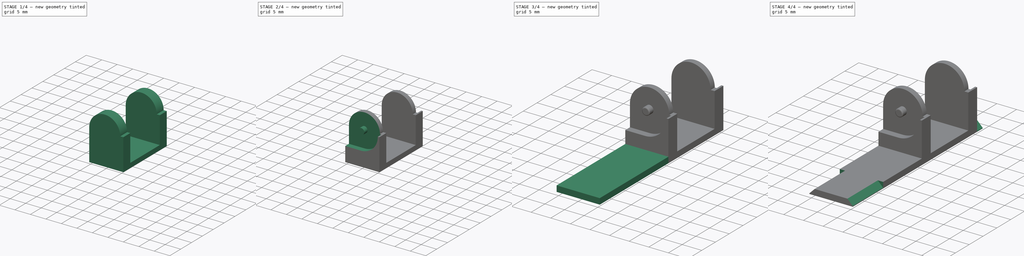
[diagram: build sequence overview — one tinted view per stage of 4, left to right]
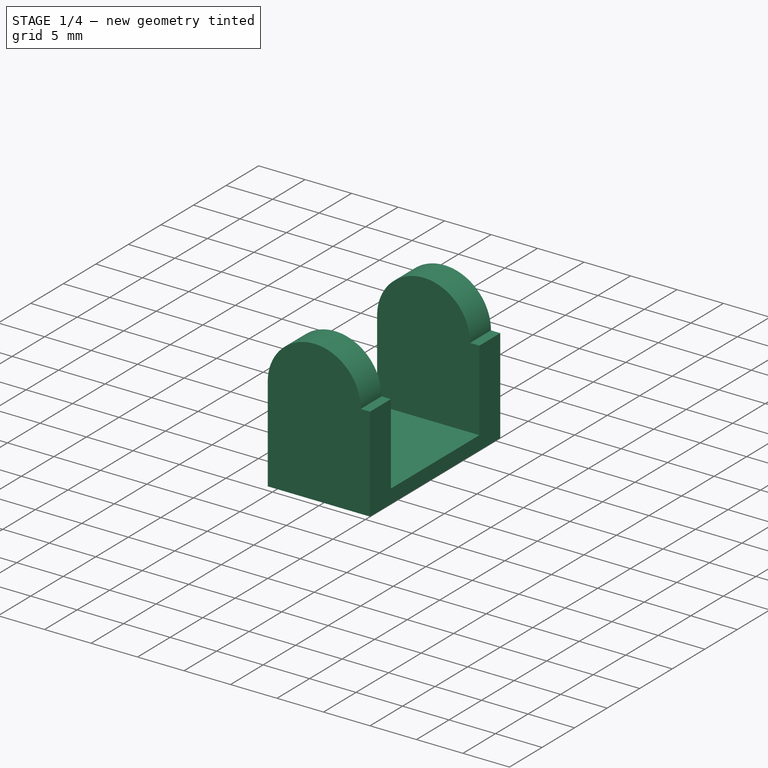
[diagram: stage 1 of 4 — iso view after this stage's code; geometry added in this stage tinted green]
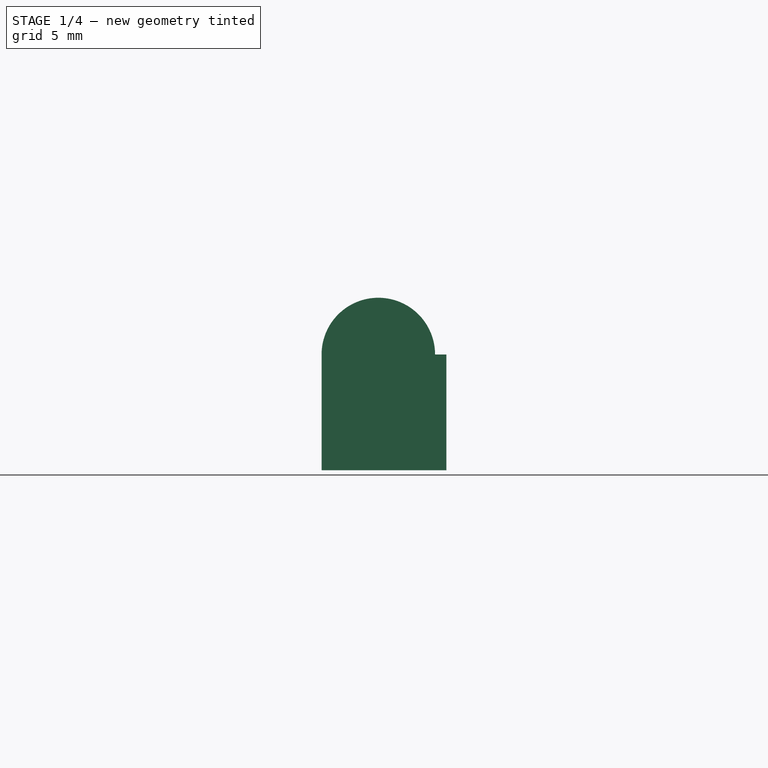
[diagram: stage 1 of 4 — front view after this stage's code; geometry added in this stage tinted green]
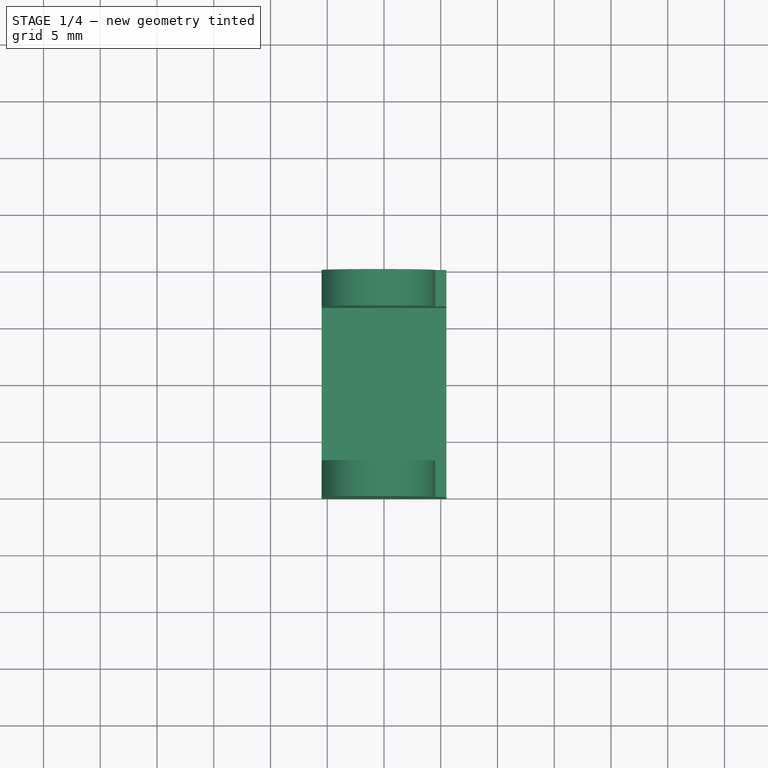
[diagram: stage 1 of 4 — top view after this stage's code; geometry added in this stage tinted green]
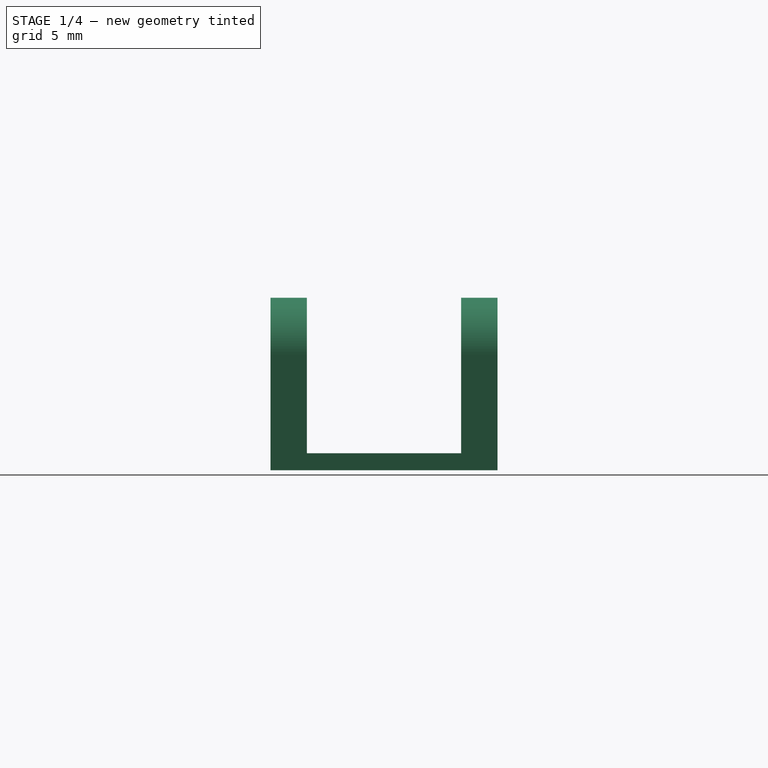
[diagram: stage 1 of 4 — right view after this stage's code; geometry added in this stage tinted green]
FCSTD DOCUMENT  (FreeCAD 0.17R13541 (Git))
Label: CableCareerExtruder2
License: All rights reserved
LicenseURL: http://en.wikipedia.org/wiki/All_rights_reserved
objects: Sketcher::SketchObject×11, PartDesign::Pocket×6, PartDesign::Pad×5, PartDesign::Fillet×2, PartDesign::Body×1
note: 36 computed .brp shape members not serialized (recipe doc carries the construction recipe); baked Part::Feature solids carry a one-line shape summary decoded from their .brp

FEATURE [Sketcher::SketchObject] Sketch
  MapMode = 5
  Support = -> [XY_Plane]
  sketch-geometry (4):
    g0: LineSegment StartX=-5.5 StartY=10 StartZ=0 EndX=5.5 EndY=10 EndZ=0
    g1: LineSegment StartX=5.5 StartY=10 StartZ=0 EndX=5.5 EndY=-10 EndZ=0
    g2: LineSegment StartX=5.5 StartY=-10 StartZ=0 EndX=-5.5 EndY=-10 EndZ=0
    g3: LineSegment StartX=-5.5 StartY=-10 StartZ=0 EndX=-5.5 EndY=10 EndZ=0
  constraints (12):
    c: Coincident(g0,g1)
    c: Coincident(g1,g2)
    c: Coincident(g2,g3)
    c: Coincident(g3,g0)
    c: Horizontal(g0)
    c: Horizontal(g2)
    c: Vertical(g1)
    c: Vertical(g3)
    c: DistanceX(g0,g0) = 11
    c: DistanceY(g3,g3) = 20
    c: DistanceX(g0,g-1) = 5.5
    c: DistanceY(g-1,g0) = 10
FEATURE [PartDesign::Pad] Pad
  Length = 15.2
  Length2 = 100
  Profile = -> Sketch
  Type = 0
FEATURE [Sketcher::SketchObject] Sketch007
  MapMode = 5
  Placement = pos=(0,-10,0) rot=(1,0,0;1.5708rad)
  sketch-geometry (5):
    g0: ArcOfCircle CenterX=-0.5 CenterY=10.2 CenterZ=0 NormalX=0 NormalY=0 NormalZ=1 AngleXU=0 Radius=5 StartAngle=1.92183e-06 EndAngle=3.14159
    g1: LineSegment StartX=-5.5 StartY=10.2 StartZ=0 EndX=-5.5 EndY=16.2 EndZ=0
    g2: LineSegment StartX=-5.5 StartY=16.2 StartZ=0 EndX=5.5 EndY=16.2 EndZ=0
    g3: LineSegment StartX=5.5 StartY=16.2 StartZ=0 EndX=5.5 EndY=10.2 EndZ=0
    g4: LineSegment StartX=5.5 StartY=10.2 StartZ=0 EndX=4.5 EndY=10.2 EndZ=0
  constraints (11):
    c: Radius(g0) = 5
    c: Angle(g0) = 3.14159
    c: Coincident(g1,g2)
    c: Coincident(g2,g3)
    c: Coincident(g3,g4)
    c: Horizontal(g4)
    c: Horizontal(g2)
    c: Vertical(g3)
    c: Vertical(g1)
    c: Coincident(g0,g1)
    c: Coincident(g0,g4)
FEATURE [PartDesign::Pocket] Pocket001
  BaseFeature = -> Pad
  Length = 20
  Length2 = 100
  Profile = -> Sketch007
  Type = 0
FEATURE [Sketcher::SketchObject] Sketch008
  ExternalGeometry = -> [Pocket001]
  MapMode = 5
  Placement = pos=(-5.5,0,0) rot=(0.57735,-0.57735,-0.57735;2.0944rad)
  Support = -> [Pocket001]
  sketch-geometry (4):
    g0: LineSegment StartX=-6.8 StartY=15.2 StartZ=0 EndX=6.8 EndY=15.2 EndZ=0
    g1: LineSegment StartX=6.8 StartY=15.2 StartZ=0 EndX=6.8 EndY=1.5 EndZ=0
    g2: LineSegment StartX=6.8 StartY=1.5 StartZ=0 EndX=-6.8 EndY=1.5 EndZ=0
    g3: LineSegment StartX=-6.8 StartY=1.5 StartZ=0 EndX=-6.8 EndY=15.2 EndZ=0
FEATURE [PartDesign::Pocket] Pocket002
  BaseFeature = -> Pocket001
  Length = 11
  Length2 = 100
  Profile = -> Sketch008
  Type = 0
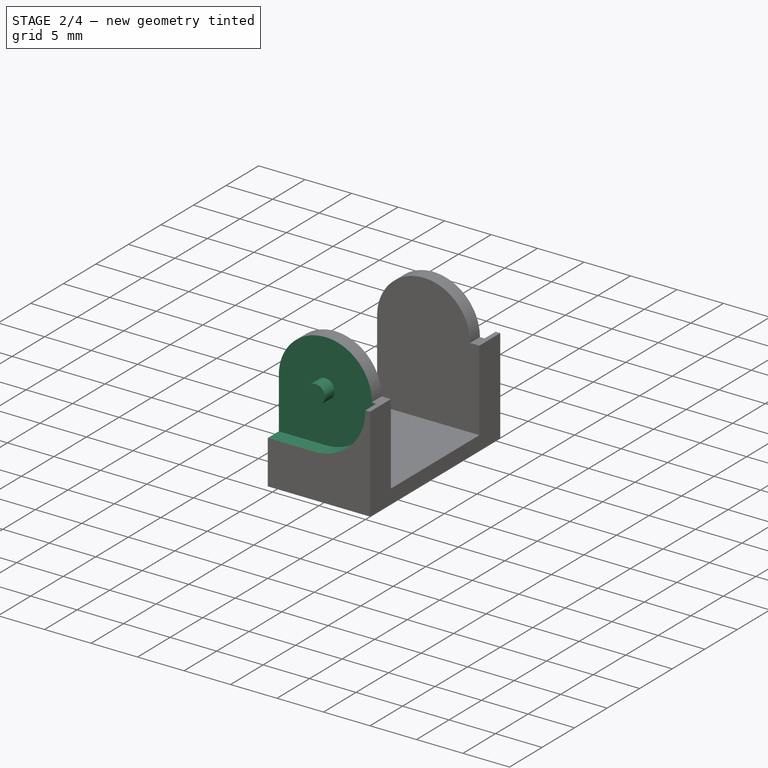
[diagram: stage 2 of 4 — iso view after this stage's code; geometry added in this stage tinted green]
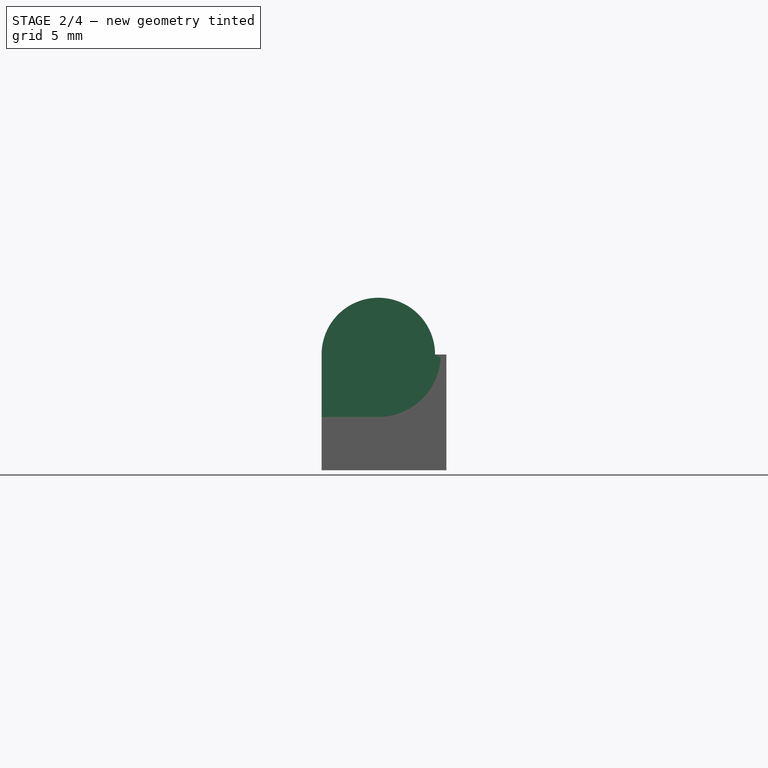
[diagram: stage 2 of 4 — front view after this stage's code; geometry added in this stage tinted green]
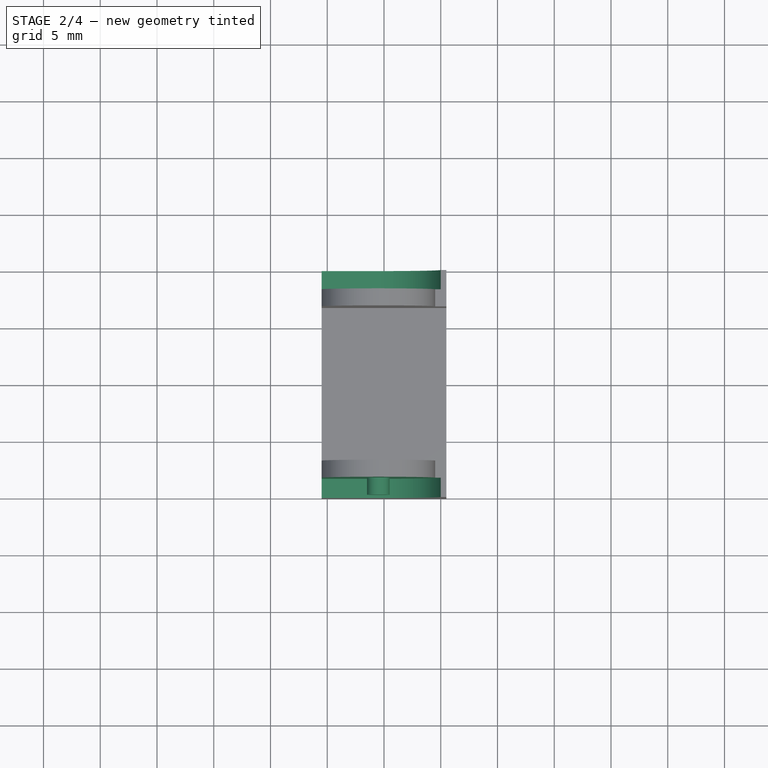
[diagram: stage 2 of 4 — top view after this stage's code; geometry added in this stage tinted green]
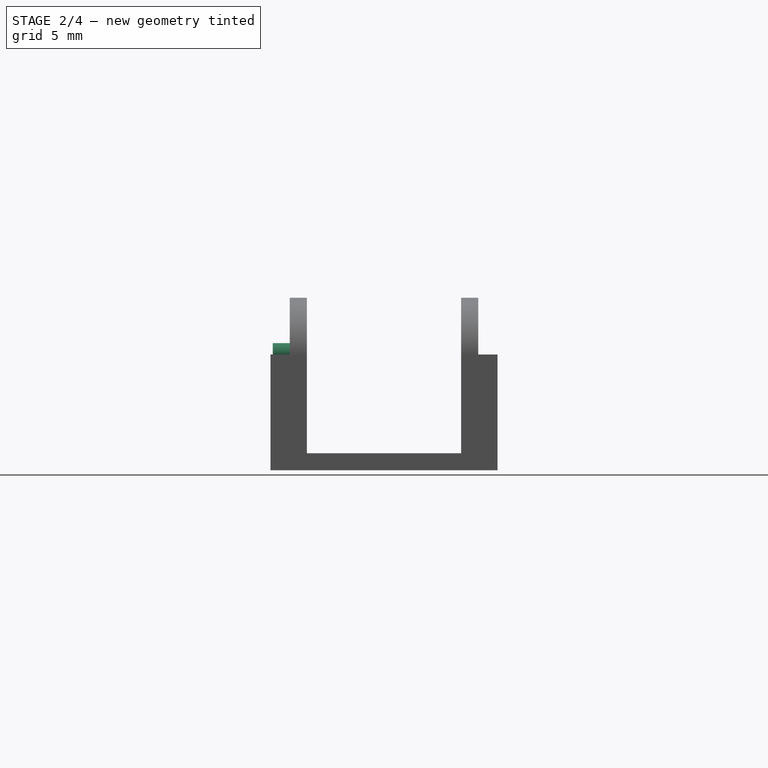
[diagram: stage 2 of 4 — right view after this stage's code; geometry added in this stage tinted green]
FEATURE [Sketcher::SketchObject] Sketch009
  MapMode = 5
  Placement = pos=(0,-10,0) rot=(1,0,0;1.5708rad)
  Support = -> [Pocket002]
  sketch-geometry (3):
    g0: ArcOfCircle CenterX=-0.5 CenterY=10.2 CenterZ=0 NormalX=0 NormalY=0 NormalZ=1 AngleXU=0 Radius=5.5 StartAngle=4.71239 EndAngle=9.42478
    g1: LineSegment StartX=-6 StartY=10.2 StartZ=0 EndX=-6 EndY=4.7 EndZ=0
    g2: LineSegment StartX=-6 StartY=4.7 StartZ=0 EndX=-0.49999 EndY=4.7 EndZ=0
FEATURE [PartDesign::Pocket] Pocket003
  BaseFeature = -> Pocket002
  Length = 1.7
  Length2 = 100
  Profile = -> Sketch009
  Type = 0
FEATURE [Sketcher::SketchObject] Sketch010
  ExternalGeometry = -> [Pocket003]
  MapMode = 5
  Placement = pos=(0,10,0) rot=(0,0.707107,0.707107;3.14159rad)
  Support = -> [Pocket003]
  sketch-geometry (3):
    g0: ArcOfCircle CenterX=0.5 CenterY=10.2 CenterZ=0 NormalX=0 NormalY=0 NormalZ=1 AngleXU=0 Radius=5.5 StartAngle=6.28318 EndAngle=10.9956
    g1: LineSegment StartX=0.49999 StartY=4.7 StartZ=0 EndX=6 EndY=4.7 EndZ=0
    g2: LineSegment StartX=6 StartY=4.7 StartZ=0 EndX=6 EndY=10.2 EndZ=0
  constraints (9):
    c: Coincident(g0,g-3)
    c: Radius(g0) = 5.5
    c: Angle(g0) = 4.71239
    c: DistanceY(g0,g-3) = 0
    c: Coincident(g1,g2)
    c: Vertical(g2)
    c: Horizontal(g1)
    c: Coincident(g1,g0)
    c: Coincident(g2,g0)
FEATURE [PartDesign::Pocket] Pocket004
  BaseFeature = -> Pocket003
  Length = 1.7
  Length2 = 100
  Profile = -> Sketch010
  Type = 0
FEATURE [Sketcher::SketchObject] Sketch011
  ExternalGeometry = -> [Pocket004]
  MapMode = 5
  Placement = pos=(0,-8.3,0) rot=(1,0,0;1.5708rad)
  Support = -> [Pocket004]
  sketch-geometry (1):
    g0: Circle CenterX=-0.5 CenterY=10.2 CenterZ=0 NormalX=0 NormalY=0 NormalZ=1 AngleXU=0 Radius=1
  constraints (2):
    c: Coincident(g-3,g0)
    c: Radius(g0) = 1
FEATURE [PartDesign::Pad] Pad001
  BaseFeature = -> Pocket004
  Length = 1.5
  Length2 = 100
  Profile = -> Sketch011
  Type = 0
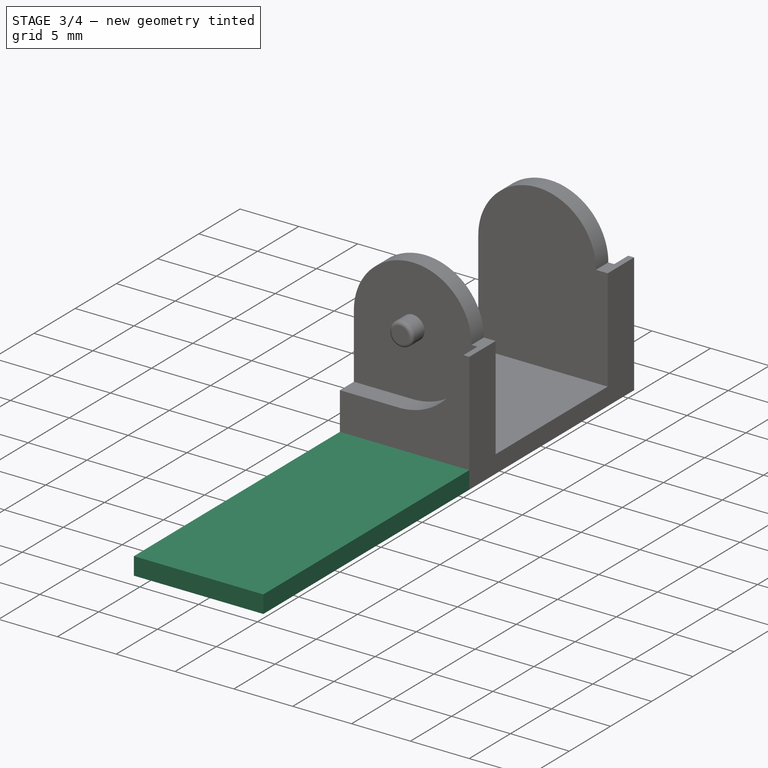
[diagram: stage 3 of 4 — iso view after this stage's code; geometry added in this stage tinted green]
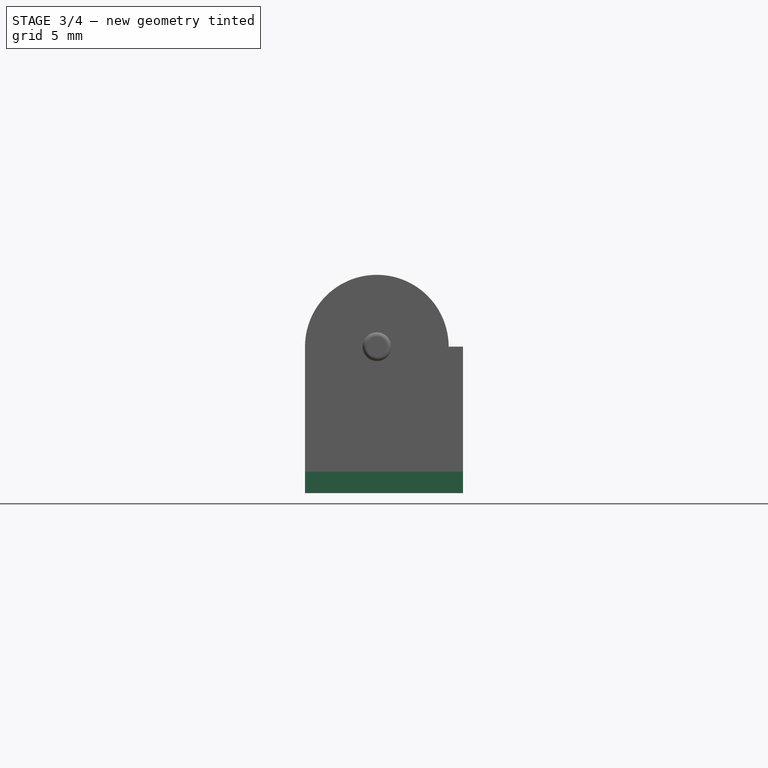
[diagram: stage 3 of 4 — front view after this stage's code; geometry added in this stage tinted green]
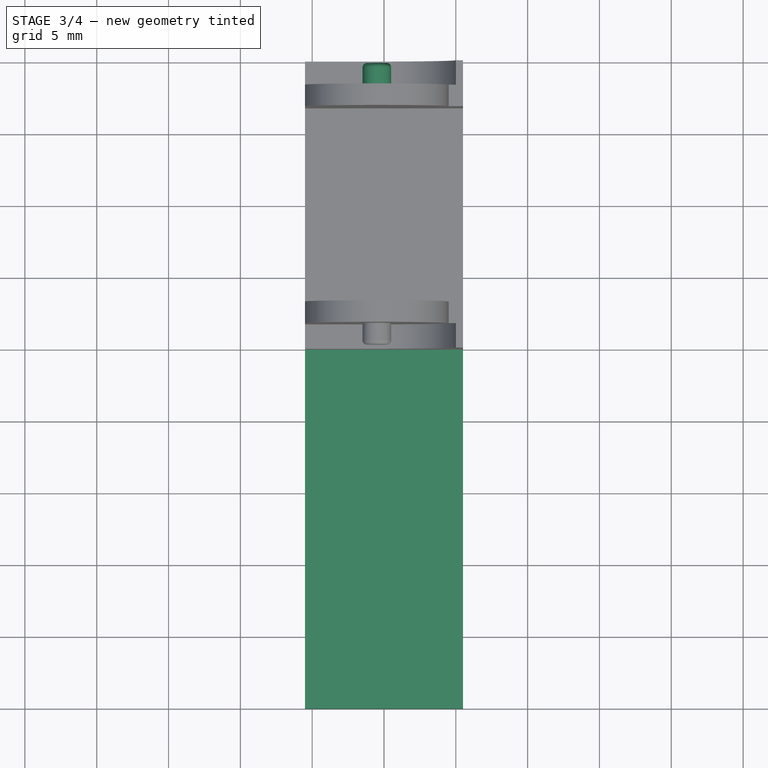
[diagram: stage 3 of 4 — top view after this stage's code; geometry added in this stage tinted green]
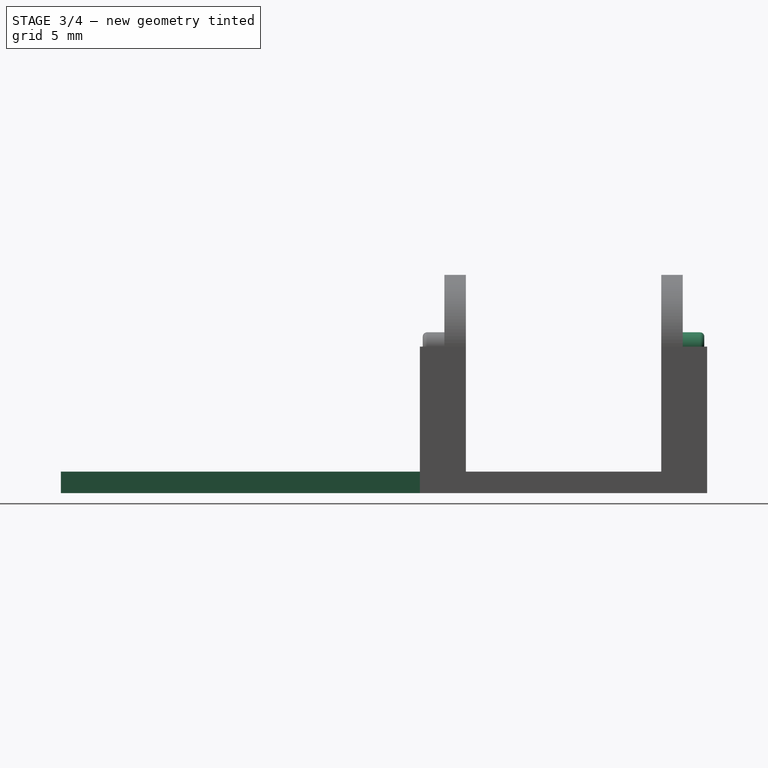
[diagram: stage 3 of 4 — right view after this stage's code; geometry added in this stage tinted green]
FEATURE [PartDesign::Fillet] Fillet
  Base = -> Pad001 [Edge57]
  BaseFeature = -> Pad001
  Radius = 0.3
FEATURE [Sketcher::SketchObject] Sketch012
  ExternalGeometry = -> [Fillet]
  MapMode = 5
  Placement = pos=(0,8.3,0) rot=(0,0.707107,0.707107;3.14159rad)
  Support = -> [Fillet]
  sketch-geometry (1):
    g0: Circle CenterX=0.5 CenterY=10.2 CenterZ=0 NormalX=0 NormalY=0 NormalZ=1 AngleXU=0 Radius=1
  constraints (2):
    c: Coincident(g-3,g0)
    c: Radius(g0) = 1
FEATURE [PartDesign::Pad] Pad002
  BaseFeature = -> Fillet
  Length = 1.5
  Length2 = 100
  Profile = -> Sketch012
  Type = 0
FEATURE [PartDesign::Fillet] Fillet001
  Base = -> Pad002 [Edge62]
  BaseFeature = -> Pad002
  Radius = 0.3
FEATURE [Sketcher::SketchObject] Sketch013
  ExternalGeometry = -> [Fillet001]
  MapMode = 5
  Placement = pos=(0,-10,0) rot=(1,0,0;1.5708rad)
  Support = -> [Fillet001]
  sketch-geometry (4):
    g0: LineSegment StartX=-5.5 StartY=1.5 StartZ=0 EndX=5.5 EndY=1.5 EndZ=0
    g1: LineSegment StartX=5.5 StartY=1.5 StartZ=0 EndX=5.5 EndY=0 EndZ=0
    g2: LineSegment StartX=5.5 StartY=0 StartZ=0 EndX=-5.5 EndY=0 EndZ=0
    g3: LineSegment StartX=-5.5 StartY=0 StartZ=0 EndX=-5.5 EndY=1.5 EndZ=0
  constraints (11):
    c: Coincident(g0,g1)
    c: Coincident(g1,g2)
    c: Coincident(g2,g3)
    c: Coincident(g3,g0)
    c: Horizontal(g0)
    c: Horizontal(g2)
    c: Vertical(g1)
    c: Vertical(g3)
    c: Coincident(g2,g-3)
    c: Coincident(g-3,g1)
    c: DistanceY(g3,g3) = 1.5
FEATURE [PartDesign::Pad] Pad003
  BaseFeature = -> Fillet001
  Length = 25
  Length2 = 100
  Profile = -> Sketch013
  Type = 0
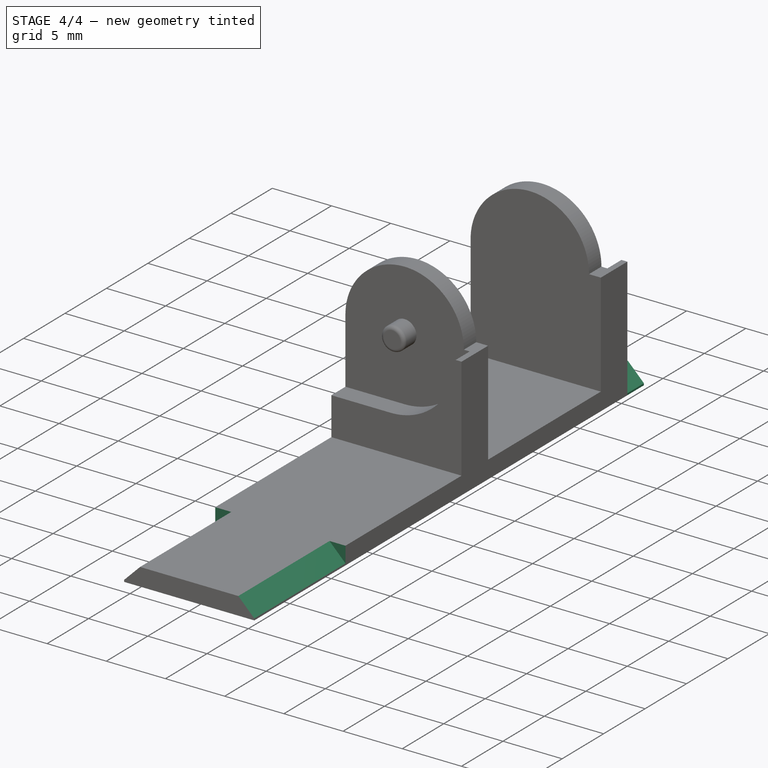
[diagram: stage 4 of 4 — iso view after this stage's code; geometry added in this stage tinted green]
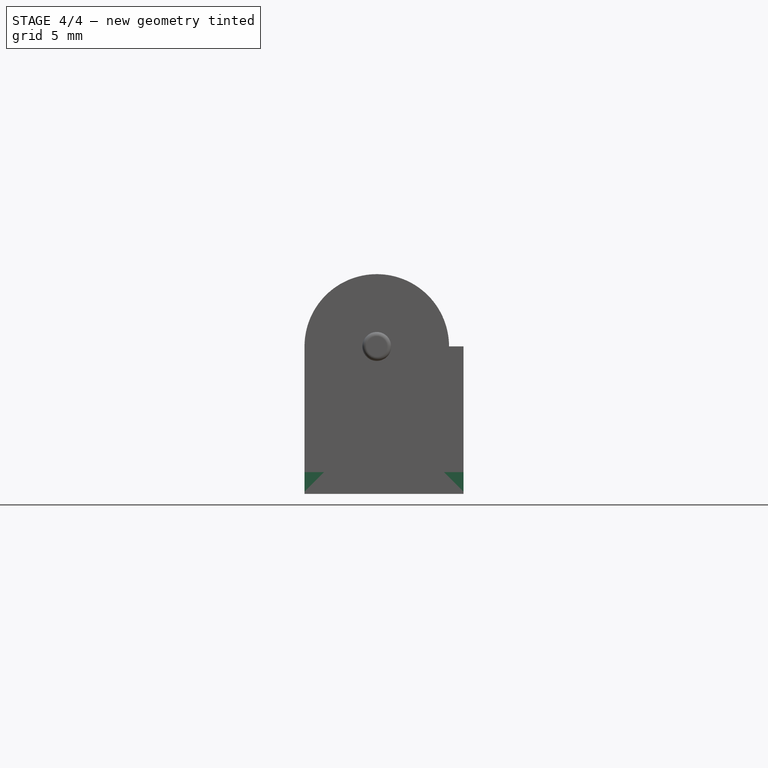
[diagram: stage 4 of 4 — front view after this stage's code; geometry added in this stage tinted green]
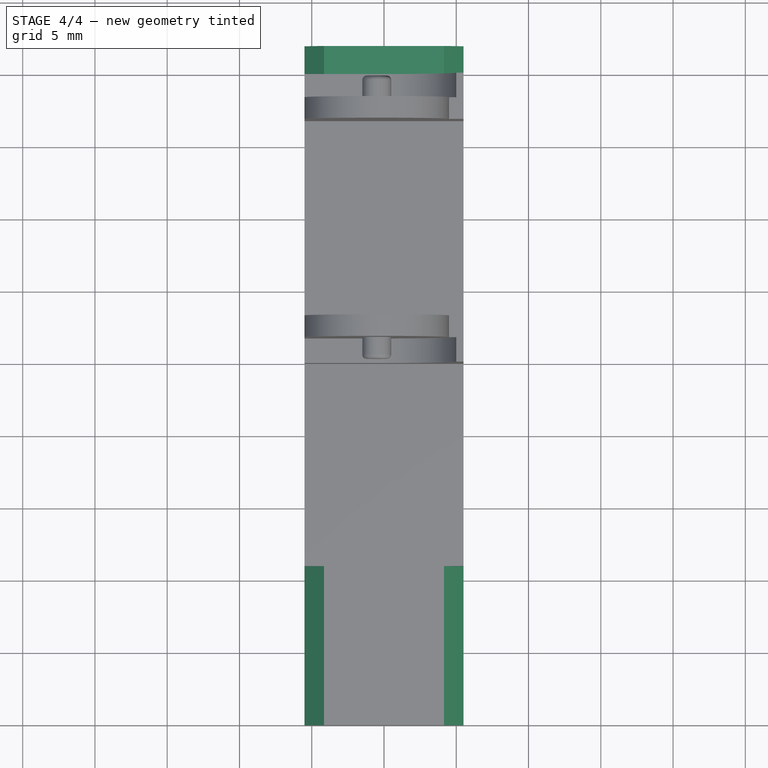
[diagram: stage 4 of 4 — top view after this stage's code; geometry added in this stage tinted green]
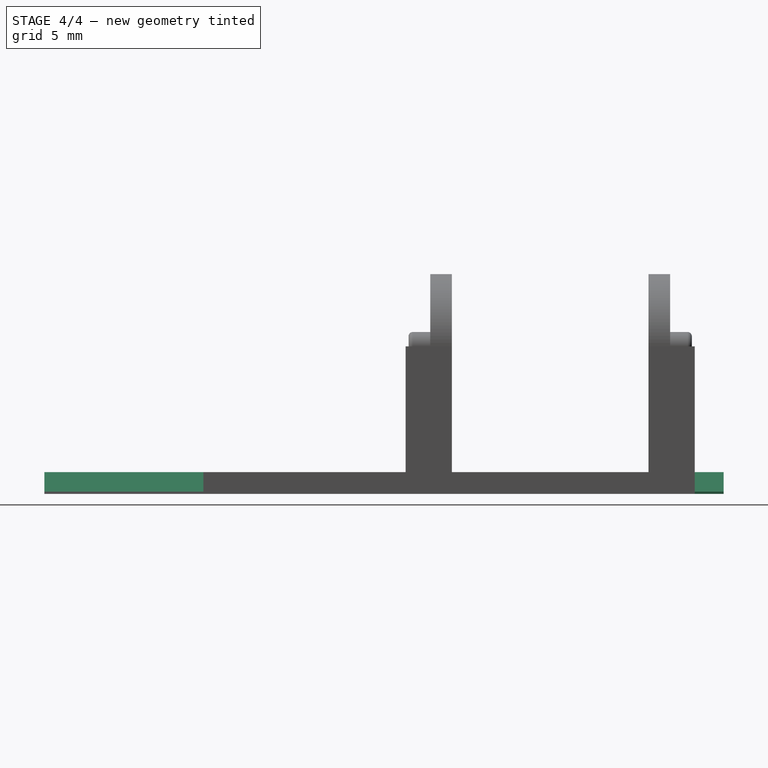
[diagram: stage 4 of 4 — right view after this stage's code; geometry added in this stage tinted green]
FEATURE [Sketcher::SketchObject] Sketch014
  ExternalGeometry = -> [Pad003]
  MapMode = 5
  Placement = pos=(0,10,0) rot=(0,0.707107,0.707107;3.14159rad)
  Support = -> [Pad003]
  sketch-geometry (4):
    g0: LineSegment StartX=-5.5 StartY=1.5 StartZ=0 EndX=5.5 EndY=1.5 EndZ=0
    g1: LineSegment StartX=5.5 StartY=1.5 StartZ=0 EndX=5.5 EndY=0 EndZ=0
    g2: LineSegment StartX=5.5 StartY=0 StartZ=0 EndX=-5.5 EndY=0 EndZ=0
    g3: LineSegment StartX=-5.5 StartY=0 StartZ=0 EndX=-5.5 EndY=1.5 EndZ=0
  constraints (11):
    c: Coincident(g0,g1)
    c: Coincident(g1,g2)
    c: Coincident(g2,g3)
    c: Coincident(g3,g0)
    c: Horizontal(g0)
    c: Horizontal(g2)
    c: Vertical(g1)
    c: Vertical(g3)
    c: Coincident(g2,g-3)
    c: Coincident(g1,g-3)
    c: DistanceY(g1,g1) = 1.5
FEATURE [PartDesign::Pad] Pad004
  BaseFeature = -> Pad003
  Length = 2
  Length2 = 100
  Profile = -> Sketch014
  Type = 0
FEATURE [Sketcher::SketchObject] Sketch015
  ExternalGeometry = -> [Pad004]
  MapMode = 5
  Placement = pos=(0,-35,0) rot=(1,0,0;1.5708rad)
  Support = -> [Pad004]
  sketch-geometry (6):
    g0: LineSegment StartX=-4.15 StartY=1.5 StartZ=0 EndX=-5.65 EndY=0 EndZ=0
    g1: LineSegment StartX=5.65 StartY=0 StartZ=0 EndX=4.15 EndY=1.5 EndZ=0
    g2: LineSegment StartX=4.15 StartY=1.5 StartZ=0 EndX=-4.15 EndY=1.5 EndZ=0
    g3: LineSegment StartX=-5.65 StartY=0 StartZ=0 EndX=-5.65 EndY=2.5 EndZ=0
    g4: LineSegment StartX=-5.65 StartY=2.5 StartZ=0 EndX=5.65 EndY=2.5 EndZ=0
    g5: LineSegment StartX=5.65 StartY=2.5 StartZ=0 EndX=5.65 EndY=0 EndZ=0
  constraints (18):
    c: Coincident(g1,g2)
    c: Coincident(g2,g0)
    c: Horizontal(g2)
    c: PointOnObject(g1,g-4)
    c: Coincident(g3,g4)
    c: Coincident(g4,g5)
    c: Horizontal(g4)
    c: Vertical(g5)
    c: Vertical(g3)
    c: DistanceY(g-4,g4) = 1
    c: Angle(g0,g3) = 0.785398
    c: Angle(g5,g1) = 0.785398
    c: Coincident(g0,g3)
    c: Coincident(g1,g5)
    c: PointOnObject(g1,g-3)
    c: PointOnObject(g0,g-3)
    c: DistanceX(g0,g-3) = 0.15
    c: DistanceX(g-3,g1) = 0.15
FEATURE [PartDesign::Pocket] Pocket
  BaseFeature = -> Pad004
  Length = 11
  Length2 = 100
  Profile = -> Sketch015
  Type = 0
FEATURE [Sketcher::SketchObject] Sketch016
  ExternalGeometry = -> [Pocket]
  MapMode = 5
  Placement = pos=(0,12,0) rot=(0,0.707107,0.707107;3.14159rad)
  Support = -> [Pocket]
  sketch-geometry (6):
    g0: LineSegment StartX=-4.15 StartY=1.5 StartZ=0 EndX=-5.65 EndY=0 EndZ=0
    g1: LineSegment StartX=-5.65 StartY=0 StartZ=0 EndX=-5.65 EndY=2.5 EndZ=0
    g2: LineSegment StartX=-5.65 StartY=2.5 StartZ=0 EndX=5.65 EndY=2.5 EndZ=0
    g3: LineSegment StartX=5.65 StartY=2.5 StartZ=0 EndX=5.65 EndY=0 EndZ=0
    g4: LineSegment StartX=5.65 StartY=0 StartZ=0 EndX=4.15 EndY=1.5 EndZ=0
    g5: LineSegment StartX=4.15 StartY=1.5 StartZ=0 EndX=-4.15 EndY=1.5 EndZ=0
  constraints (18):
    c: Coincident(g0,g1)
    c: Coincident(g1,g2)
    c: Coincident(g2,g3)
    c: Coincident(g3,g4)
    c: Coincident(g4,g5)
    c: Coincident(g5,g0)
    c: Horizontal(g5)
    c: Horizontal(g2)
    c: Vertical(g1)
    c: Vertical(g3)
    c: PointOnObject(g4,g-3)
    c: PointOnObject(g3,g-4)
    c: PointOnObject(g0,g-4)
    c: DistanceX(g0,g-4) = 0.15
    c: DistanceY(g-3,g2) = 1
    c: DistanceX(g-4,g3) = 0.15
    c: Angle(g4,g-4) = 0.785398
    c: Angle(g-4,g0) = 0.785398
FEATURE [PartDesign::Pocket] Pocket005
  BaseFeature = -> Pocket
  Length = 2
  Length2 = 100
  Profile = -> Sketch016
  Type = 0
FEATURE [PartDesign::Body] Body
  Group = -> [Sketch,Pad,Sketch007,Pocket001,Sketch008,Pocket002,Sketch009,Pocket003,Sketch010,Pocket004,Sketch011,Pad001,Fillet,Sketch012,Pad002,Fillet001,Sketch013,Pad003,Sketch014,Pad004,Sketch015,Pocket,Sketch016,Pocket005]
  Origin = -> Origin
  Tip = -> Pocket005
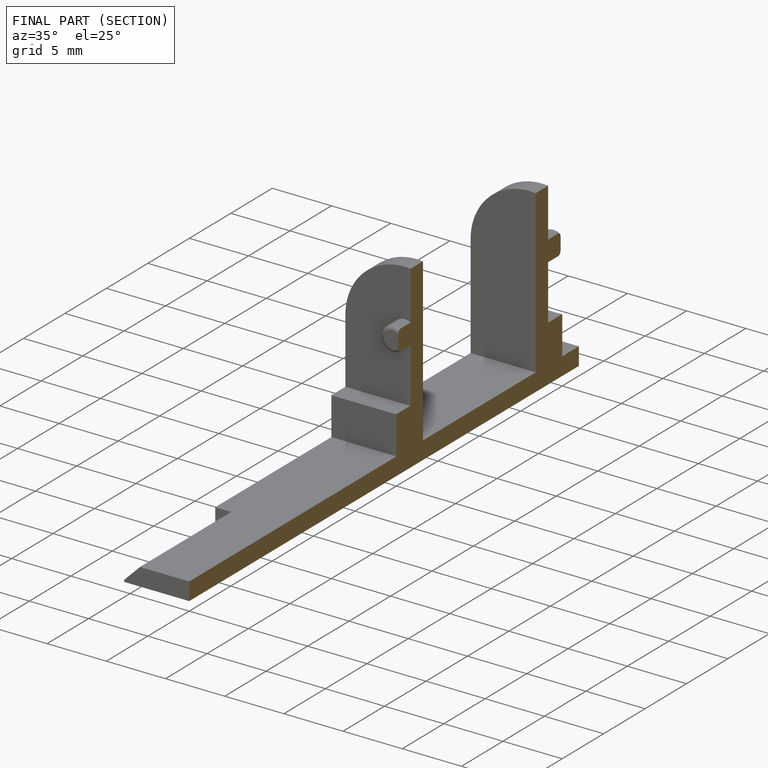
[diagram: finished part — half-section view (interior)]
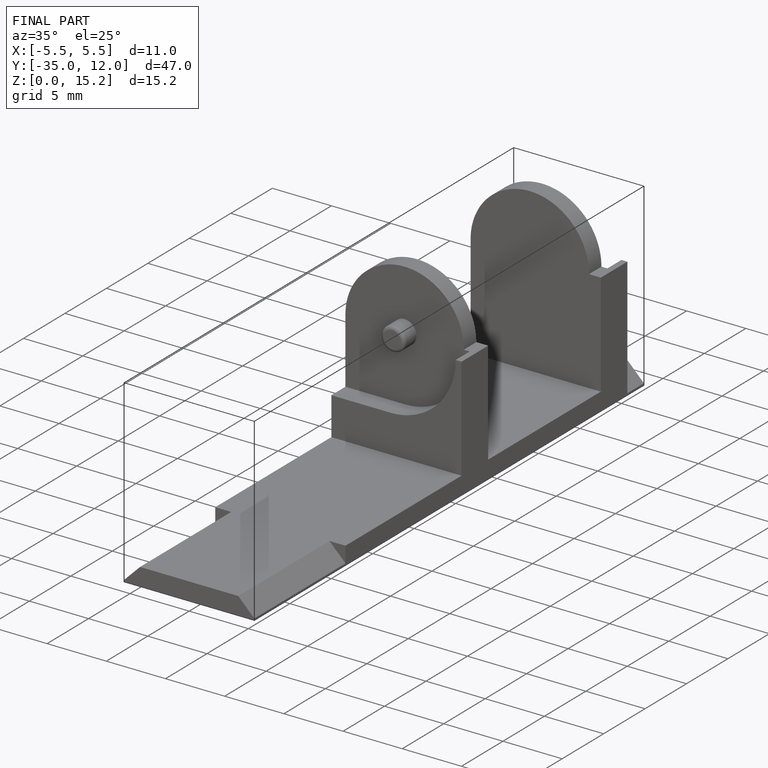
[diagram: finished part — iso view with bounding-box wireframe]
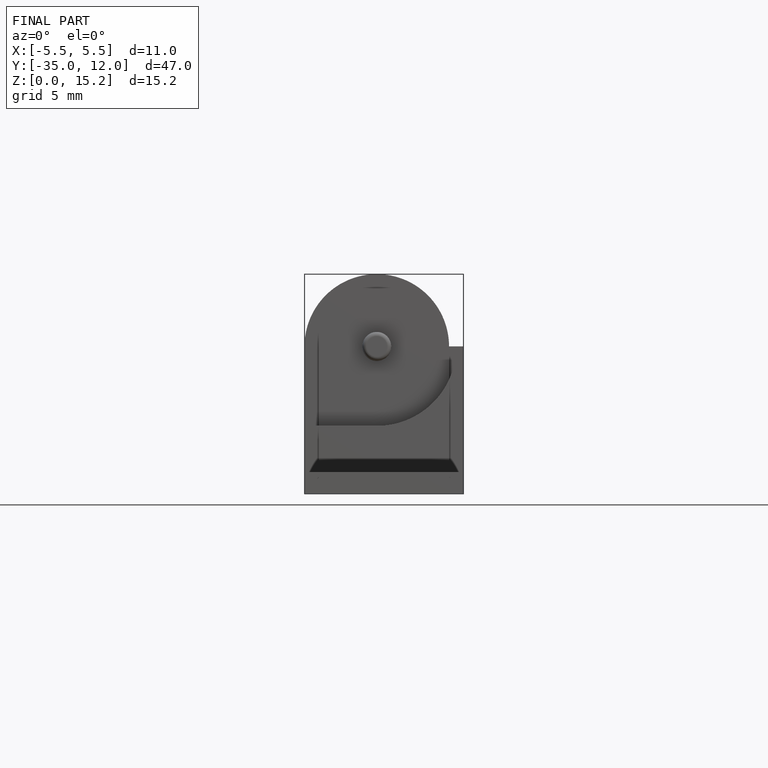
[diagram: finished part — front view with bounding-box wireframe]
